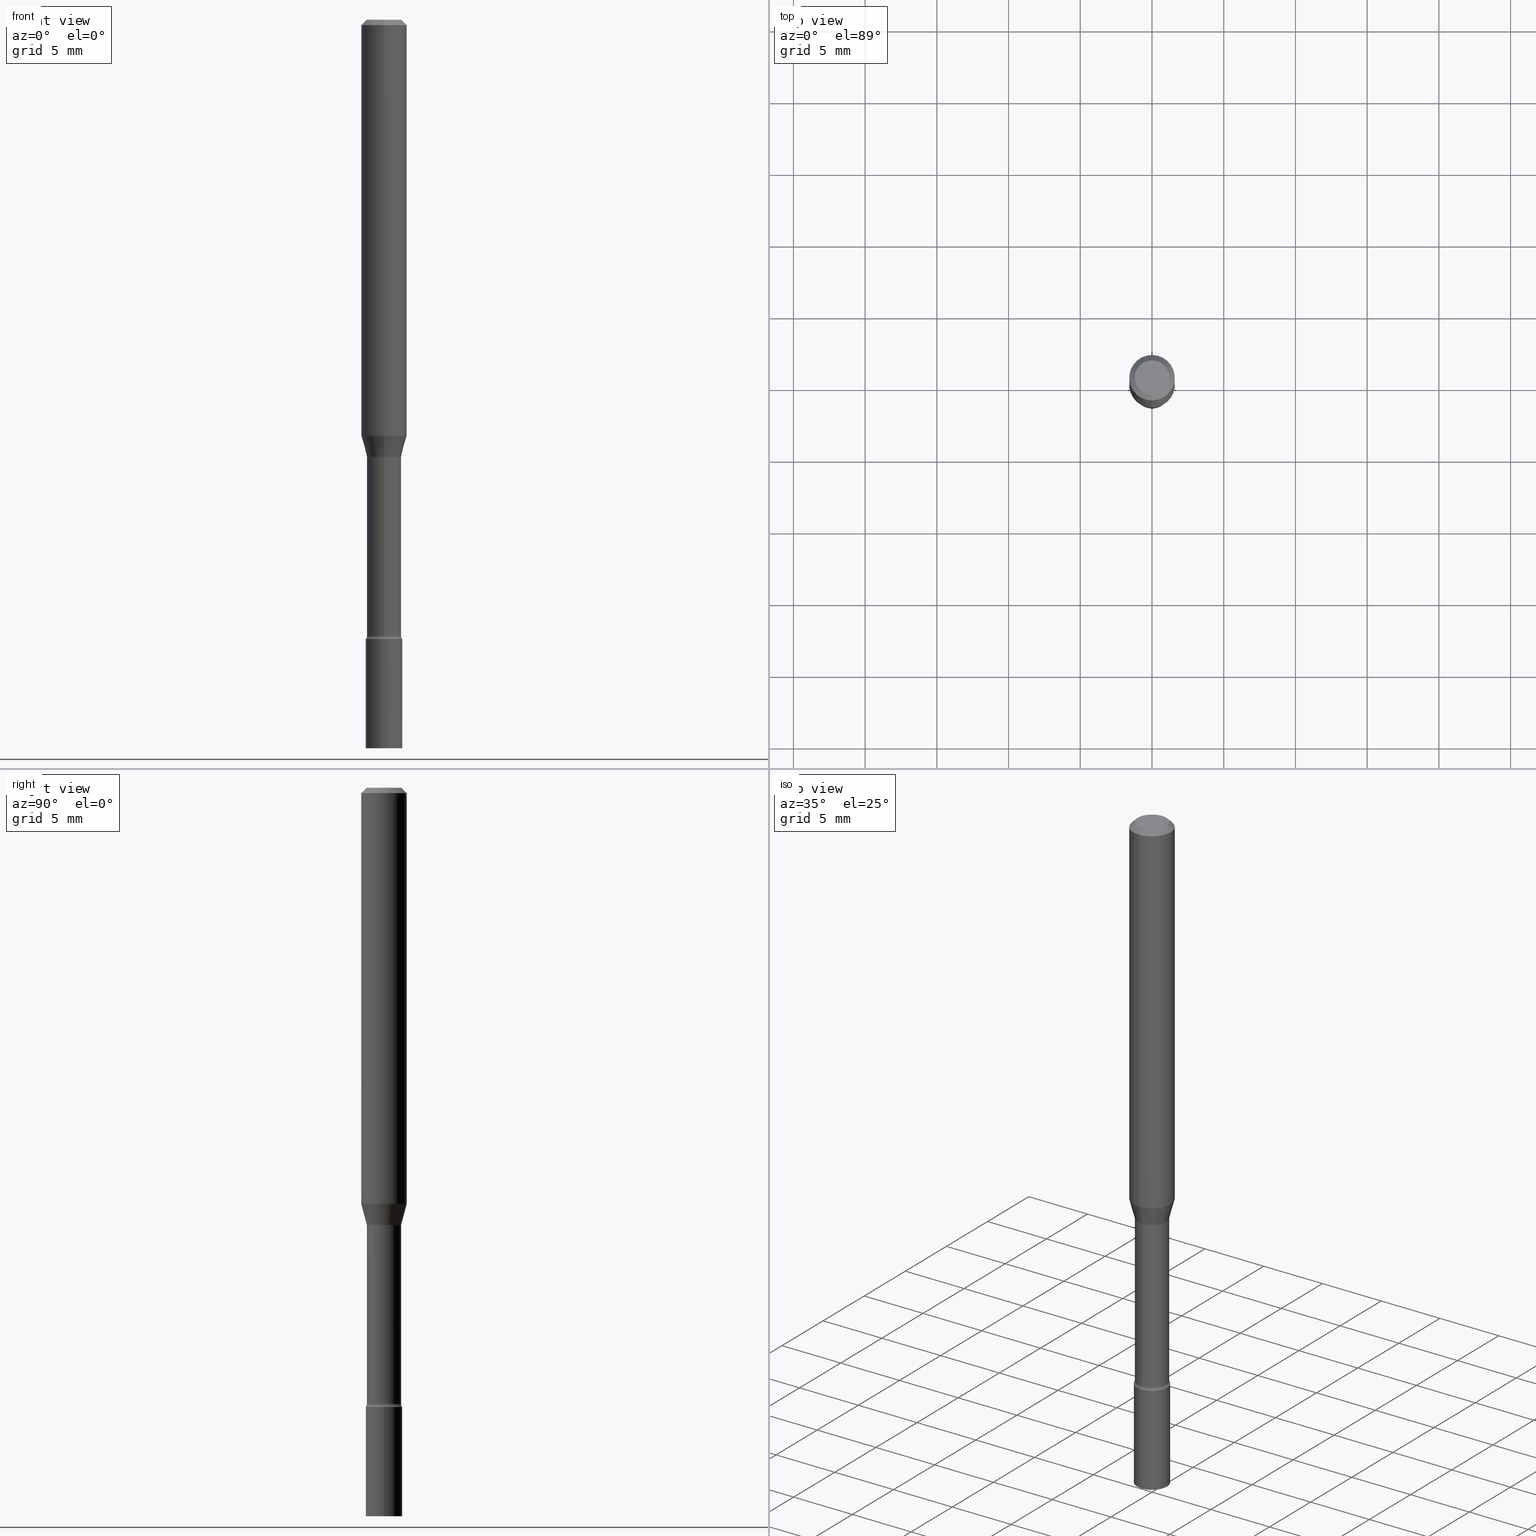
[diagram: canonical four-view strip — front | top / right | iso, engineering-drawing reading convention]
A machine part, canonical four-view strip (front | top / right | iso — engineering-drawing reading convention). The complete STEP part file that produces these views, byte-faithful:
ISO-10303-21;
HEADER;
FILE_DESCRIPTION (( 'STEP AP203' ),
    '1' );
FILE_NAME ('04289.STEP',
    '2024-03-08T22:52:43',
    ( '' ),
    ( '' ),
    'SwSTEP 2.0',
    'SolidWorks 2023',
    '' );
FILE_SCHEMA (( 'CONFIG_CONTROL_DESIGN' ));
ENDSEC;

DATA;
#1 = ORIENTED_EDGE ( 'NONE', *, *, #505, .T. ) ;
#2 = VECTOR ( 'NONE', #340, 39.37007874015748143 ) ;
#3 = DIRECTION ( 'NONE',  ( 6.982962677686265922E-15, 1.000000000000000000, -3.483106191921935554E-15 ) ) ;
#4 = EDGE_CURVE ( 'NONE', #512, #92, #429, .T. ) ;
#5 = FACE_OUTER_BOUND ( 'NONE', #148, .T. ) ;
#6 = CARTESIAN_POINT ( 'NONE',  ( -3.491481338842715752E-16, -0.05000000000000592165, -1.699999999999999734 ) ) ;
#7 = CARTESIAN_POINT ( 'NONE',  ( 0.000000000000000000, 0.000000000000000000, 0.000000000000000000 ) ) ;
#8 = ORIENTED_EDGE ( 'NONE', *, *, #56, .F. ) ;
#9 = EDGE_CURVE ( 'NONE', #92, #169, #440, .T. ) ;
#10 = ORIENTED_EDGE ( 'NONE', *, *, #437, .T. ) ;
#11 = CIRCLE ( 'NONE', #262, 0.05000000000000000278 ) ;
#12 = ORIENTED_EDGE ( 'NONE', *, *, #402, .F. ) ;
#13 = CARTESIAN_POINT ( 'NONE',  ( 2.929807212945176196E-29, -4.183247395363407670E-15, -1.198092501787273001 ) ) ;
#14 = VERTEX_POINT ( 'NONE', #202 ) ;
#15 = CALENDAR_DATE ( 2024, 8, 3 ) ;
#16 = CARTESIAN_POINT ( 'NONE',  ( 3.840629472727447874E-16, 0.04749999999999999362, -1.947592745229184119E-16 ) ) ;
#17 = CIRCLE ( 'NONE', #470, 0.01499999999999997689 ) ;
#18 = PRODUCT_DEFINITION_SHAPE ( 'NONE', 'NONE',  #465 ) ;
#19 = CONICAL_SURFACE ( 'NONE', #175, 0.06250000000000000000, 0.7853981633974483900 ) ;
#20 = ADVANCED_FACE ( 'NONE', ( #375 ), #270, .F. ) ;
#21 = COORDINATED_UNIVERSAL_TIME_OFFSET ( 5, 0, .BEHIND. ) ;
#22 = DIRECTION ( 'NONE',  ( -2.445393163361418932E-29, 3.491589663672031221E-15, 1.000000000000000000 ) ) ;
#23 =( NAMED_UNIT ( * ) SI_UNIT ( $, .STERADIAN. ) SOLID_ANGLE_UNIT ( ) );
#24 = DATE_AND_TIME ( #360, #516 ) ;
#25 = APPROVAL_DATE_TIME ( #79, #280 ) ;
#26 = DIRECTION ( 'NONE',  ( -1.000000000000000000, 6.982962677686265922E-15, -4.883557194083112340E-29 ) ) ;
#27 = CIRCLE ( 'NONE', #496, 0.05000000000000000278 ) ;
#28 = CARTESIAN_POINT ( 'NONE',  ( -3.317683261006717080E-16, -0.04751111260566815570, -1.198092501787272779 ) ) ;
#29 = CC_DESIGN_PERSON_AND_ORGANIZATION_ASSIGNMENT ( #255, #485, ( #67 ) ) ;
#30 = ORIENTED_EDGE ( 'NONE', *, *, #264, .T. ) ;
#31 = DIRECTION ( 'NONE',  ( 2.445393163361418932E-29, -3.491589663672031221E-15, -1.000000000000000000 ) ) ;
#32 = DIRECTION ( 'NONE',  ( -6.982962677686265922E-15, -1.000000000000000000, 3.491589663672031221E-15 ) ) ;
#33 = CIRCLE ( 'NONE', #102, 0.01499999999999999424 ) ;
#34 = CARTESIAN_POINT ( 'NONE',  ( -0.05000000000000000278, -6.103969108979769176E-15, -2.000000000000000000 ) ) ;
#35 = EDGE_CURVE ( 'NONE', #192, #125, #33, .T. ) ;
#36 = AXIS2_PLACEMENT_3D ( 'NONE', #431, #226, #88 ) ;
#37 = CC_DESIGN_APPROVAL ( #482, ( #89 ) ) ;
#38 = ORIENTED_EDGE ( 'NONE', *, *, #323, .F. ) ;
#39 = EDGE_LOOP ( 'NONE', ( #129, #389 ) ) ;
#40 = APPROVAL ( #139, 'UNSPECIFIED' ) ;
#41 = ORIENTED_EDGE ( 'NONE', *, *, #35, .T. ) ;
#42 = AXIS2_PLACEMENT_3D ( 'NONE', #441, #46, #251 ) ;
#43 = DIRECTION ( 'NONE',  ( -6.982962677686265922E-15, -1.000000000000000000, 4.370956789862821150E-15 ) ) ;
#44 = ORIENTED_EDGE ( 'NONE', *, *, #225, .F. ) ;
#45 = DIRECTION ( 'NONE',  ( -6.982962677686265922E-15, -1.000000000000000000, 3.491589663672031221E-15 ) ) ;
#46 = DIRECTION ( 'NONE',  ( -2.445393163361418932E-29, 3.491589663672031221E-15, 1.000000000000000000 ) ) ;
#47 = PERSON ( 'UNSPECIFIED', 'UNSPECIFIED', 'UNSPECIFIED', ('UNSPECIFIED'), ('UNSPECIFIED'), ('UNSPECIFIED') ) ;
#48 = CARTESIAN_POINT ( 'NONE',  ( 3.908379845742332061E-16, 0.04751111260565978739, -1.198092501787273223 ) ) ;
#49 = AXIS2_PLACEMENT_3D ( 'NONE', #238, #405, #372 ) ;
#50 = ORIENTED_EDGE ( 'NONE', *, *, #227, .F. ) ;
#51 = CARTESIAN_POINT ( 'NONE',  ( 4.157296970514731878E-29, -5.935518276033347214E-15, -1.699999999999999956 ) ) ;
#52 = AXIS2_PLACEMENT_3D ( 'NONE', #428, #358, #294 ) ;
#53 = EDGE_CURVE ( 'NONE', #64, #169, #172, .T. ) ;
#54 = ORIENTED_EDGE ( 'NONE', *, *, #227, .T. ) ;
#55 = CC_DESIGN_PERSON_AND_ORGANIZATION_ASSIGNMENT ( #468, #100, ( #465 ) ) ;
#56 = EDGE_CURVE ( 'NONE', #169, #64, #469, .T. ) ;
#57 =( CONVERSION_BASED_UNIT ( 'INCH', #425 ) LENGTH_UNIT ( ) NAMED_UNIT ( #163 ) );
#58 = PERSON_AND_ORGANIZATION_ROLE ( 'creator' ) ;
#59 = VECTOR ( 'NONE', #368, 39.37007874015748854 ) ;
#60 = CC_DESIGN_SECURITY_CLASSIFICATION ( #154, ( #89 ) ) ;
#61 = DIRECTION ( 'NONE',  ( -2.445393163361418932E-29, 3.491589663672031221E-15, 1.000000000000000000 ) ) ;
#62 = ORIENTED_EDGE ( 'NONE', *, *, #349, .T. ) ;
#63 = LINE ( 'NONE', #397, #97 ) ;
#64 = VERTEX_POINT ( 'NONE', #260 ) ;
#65 = DIRECTION ( 'NONE',  ( 2.445393163361418372E-29, -3.491589663672031616E-15, -1.000000000000000000 ) ) ;
#66 = AXIS2_PLACEMENT_3D ( 'NONE', #111, #83, #32 ) ;
#67 = PRODUCT ( '04289', '04289', '', ( #108 ) ) ;
#68 = CYLINDRICAL_SURFACE ( 'NONE', #42, 0.06250000000000000000 ) ;
#69 = CARTESIAN_POINT ( 'NONE',  ( 4.890937612370273194E-29, -6.982962677686291165E-15, -2.000000000000000000 ) ) ;
#70 = CARTESIAN_POINT ( 'NONE',  ( 2.939300927796797493E-29, -4.196802743903029132E-15, -1.201974787463810701 ) ) ;
#71 = ORIENTED_EDGE ( 'NONE', *, *, #120, .F. ) ;
#72 = CIRCLE ( 'NONE', #359, 0.04751111260566397154 ) ;
#73 = CARTESIAN_POINT ( 'NONE',  ( 0.05000000000000000278, -6.284666409917660550E-15, -1.699999999999999956 ) ) ;
#74 = AXIS2_PLACEMENT_3D ( 'NONE', #474, #61, #106 ) ;
#75 = LINE ( 'NONE', #374, #379 ) ;
#76 = EDGE_LOOP ( 'NONE', ( #84, #12, #448, #453 ) ) ;
#77 = ORIENTED_EDGE ( 'NONE', *, *, #35, .F. ) ;
#78 = VERTEX_POINT ( 'NONE', #48 ) ;
#79 = DATE_AND_TIME ( #249, #345 ) ;
#80 = ORIENTED_EDGE ( 'NONE', *, *, #9, .F. ) ;
#81 = ORIENTED_EDGE ( 'NONE', *, *, #307, .F. ) ;
#82 = DIRECTION ( 'NONE',  ( -6.982962677686265922E-15, -1.000000000000000000, 3.491589663672031221E-15 ) ) ;
#83 = DIRECTION ( 'NONE',  ( -2.445393163361418932E-29, 3.491589663672031221E-15, 1.000000000000000000 ) ) ;
#84 = ORIENTED_EDGE ( 'NONE', *, *, #264, .F. ) ;
#85 = DATE_TIME_ROLE ( 'creation_date' ) ;
#86 = APPROVAL_ROLE ( '' ) ;
#87 = VERTEX_POINT ( 'NONE', #386 ) ;
#88 = DIRECTION ( 'NONE',  ( -6.982962677686265922E-15, -1.000000000000000000, 2.874956872025124521E-15 ) ) ;
#89 = PRODUCT_DEFINITION_FORMATION_WITH_SPECIFIED_SOURCE ( 'ANY', '', #67, .NOT_KNOWN. ) ;
#90 = ORIENTED_EDGE ( 'NONE', *, *, #180, .F. ) ;
#91 = CARTESIAN_POINT ( 'NONE',  ( 0.000000000000000000, 0.000000000000000000, 0.000000000000000000 ) ) ;
#92 = VERTEX_POINT ( 'NONE', #313 ) ;
#93 = CARTESIAN_POINT ( 'NONE',  ( 3.339550858072885526E-16, 0.04699999999999578820, -1.201974787463810923 ) ) ;
#94 = ORIENTED_EDGE ( 'NONE', *, *, #149, .T. ) ;
#95 = MANIFOLD_SOLID_BREP ( 'Body-Move/Copy2[1]', #126 ) ;
#96 = FACE_OUTER_BOUND ( 'NONE', #201, .T. ) ;
#97 = VECTOR ( 'NONE', #475, 39.37007874015748143 ) ;
#98 = MANIFOLD_SOLID_BREP ( 'Body-Move/Copy2[2]', #370 ) ;
#99 = PERSON_AND_ORGANIZATION ( #47, #224 ) ;
#100 = PERSON_AND_ORGANIZATION_ROLE ( 'creator' ) ;
#101 = CARTESIAN_POINT ( 'NONE',  ( -3.317683261006717080E-16, -0.04751111260566815570, -1.198092501787272779 ) ) ;
#102 = AXIS2_PLACEMENT_3D ( 'NONE', #328, #483, #110 ) ;
#103 = LOCAL_TIME ( 17, 52, 43.00000000000000000, #287 ) ;
#104 = ORIENTED_EDGE ( 'NONE', *, *, #9, .T. ) ;
#105 = CARTESIAN_POINT ( 'NONE',  ( 2.793013657316433629E-29, -3.987930351034339464E-15, -1.142153212482682312 ) ) ;
#106 = DIRECTION ( 'NONE',  ( -6.982962677686266711E-15, -1.000000000000000000, 3.491589663672031221E-15 ) ) ;
#107 = ORIENTED_EDGE ( 'NONE', *, *, #292, .F. ) ;
#108 = MECHANICAL_CONTEXT ( 'NONE', #161, 'mechanical' ) ;
#109 = TOROIDAL_SURFACE ( 'NONE', #463, 0.06199999999999999956, 0.01499999999999999424 ) ;
#110 = DIRECTION ( 'NONE',  ( -6.982962677686266711E-15, -1.000000000000000000, 0.000000000000000000 ) ) ;
#111 = CARTESIAN_POINT ( 'NONE',  ( 0.000000000000000000, 0.000000000000000000, 0.000000000000000000 ) ) ;
#112 = DIRECTION ( 'NONE',  ( -2.445468806185136597E-29, 3.491481338843145583E-15, 1.000000000000000000 ) ) ;
#113 = EDGE_LOOP ( 'NONE', ( #50, #71, #41, #302 ) ) ;
#114 = VERTEX_POINT ( 'NONE', #16 ) ;
#115 = CIRCLE ( 'NONE', #420, 0.05000000000000000278 ) ;
#116 = AXIS2_PLACEMENT_3D ( 'NONE', #156, #269, #427 ) ;
#117 = VECTOR ( 'NONE', #511, 39.37007874015748143 ) ;
#118 = COORDINATED_UNIVERSAL_TIME_OFFSET ( 5, 0, .BEHIND. ) ;
#119 = ORIENTED_EDGE ( 'NONE', *, *, #257, .F. ) ;
#120 = EDGE_CURVE ( 'NONE', #192, #78, #72, .T. ) ;
#121 = CARTESIAN_POINT ( 'NONE',  ( -4.329436860165075429E-16, -0.06200000000000597394, -1.690999999999999837 ) ) ;
#122 = EDGE_LOOP ( 'NONE', ( #44, #514, #490, #408 ) ) ;
#123 = DIRECTION ( 'NONE',  ( -2.445393163361418932E-29, 3.491589663672031221E-15, 1.000000000000000000 ) ) ;
#124 = LOCAL_TIME ( 17, 52, 43.00000000000000000, #491 ) ;
#125 = VERTEX_POINT ( 'NONE', #309 ) ;
#126 = CLOSED_SHELL ( 'NONE', ( #295, #130, #165, #338 ) ) ;
#127 = PERSON_AND_ORGANIZATION ( #47, #224 ) ;
#128 = AXIS2_PLACEMENT_3D ( 'NONE', #373, #480, #484 ) ;
#129 = ORIENTED_EDGE ( 'NONE', *, *, #132, .T. ) ;
#130 = ADVANCED_FACE ( 'NONE', ( #219 ), #419, .T. ) ;
#131 = SECURITY_CLASSIFICATION_LEVEL ( 'unclassified' ) ;
#132 = EDGE_CURVE ( 'NONE', #455, #394, #115, .T. ) ;
#133 = DIRECTION ( 'NONE',  ( -2.445468806185136877E-29, 3.491481338843145188E-15, 1.000000000000000000 ) ) ;
#134 = DIRECTION ( 'NONE',  ( -2.445393163361418932E-29, 3.491589663672031221E-15, 1.000000000000000000 ) ) ;
#135 = APPROVAL_DATE_TIME ( #306, #482 ) ;
#136 = CARTESIAN_POINT ( 'NONE',  ( -4.364351673553912750E-16, -0.06250000000000005551, -0.01499999999999981209 ) ) ;
#137 = EDGE_LOOP ( 'NONE', ( #377, #62, #276, #81 ) ) ;
#138 = CARTESIAN_POINT ( 'NONE',  ( 0.05000000000000000278, -3.491481338843133848E-16, 2.438088387897968247E-30 ) ) ;
#139 = APPROVAL_STATUS ( 'not_yet_approved' ) ;
#140 = PERSON_AND_ORGANIZATION ( #47, #224 ) ;
#141 = DIRECTION ( 'NONE',  ( 1.000000000000000000, -7.105427357601001070E-15, 4.926316835138632092E-29 ) ) ;
#142 = DIRECTION ( 'NONE',  ( -2.445468806185136597E-29, 3.491481338843145583E-15, 1.000000000000000000 ) ) ;
#143 = DIRECTION ( 'NONE',  ( -2.445393163361418932E-29, 3.491589663672031221E-15, 1.000000000000000000 ) ) ;
#144 = AXIS2_PLACEMENT_3D ( 'NONE', #288, #337, #209 ) ;
#145 = EDGE_CURVE ( 'NONE', #394, #455, #11, .T. ) ;
#146 = CONICAL_SURFACE ( 'NONE', #116, 0.04751111260566397154, 0.2617993877991500740 ) ;
#147 = AXIS2_PLACEMENT_3D ( 'NONE', #322, #364, #508 ) ;
#148 = EDGE_LOOP ( 'NONE', ( #320, #366, #261, #494 ) ) ;
#149 = EDGE_CURVE ( 'NONE', #459, #14, #515, .T. ) ;
#150 = CC_DESIGN_DATE_AND_TIME_ASSIGNMENT ( #207, #319, ( #154 ) ) ;
#151 = FACE_OUTER_BOUND ( 'NONE', #312, .T. ) ;
#152 = AXIS2_PLACEMENT_3D ( 'NONE', #460, #498, #212 ) ;
#153 = CARTESIAN_POINT ( 'NONE',  ( 4.405364961712914478E-16, 0.06199999999999579459, -1.201974787463811145 ) ) ;
#154 = SECURITY_CLASSIFICATION ( '', '', #131 ) ;
#155 = DIRECTION ( 'NONE',  ( 6.982962677686265922E-15, 1.000000000000000000, -3.491589663672031616E-15 ) ) ;
#156 = CARTESIAN_POINT ( 'NONE',  ( 2.929807212945176196E-29, -4.183247395363407670E-15, -1.198092501787273001 ) ) ;
#157 = CARTESIAN_POINT ( 'NONE',  ( 3.375867592983758407E-16, 0.04751111260565978739, -1.198092501787273223 ) ) ;
#158 = ORIENTED_EDGE ( 'NONE', *, *, #225, .T. ) ;
#159 = DIRECTION ( 'NONE',  ( -2.445393163361418932E-29, 3.491589663672031616E-15, 1.000000000000000000 ) ) ;
#160 = CIRCLE ( 'NONE', #387, 0.04700000000000009032 ) ;
#161 = APPLICATION_CONTEXT ( 'configuration controlled 3d designs of mechanical parts and assemblies' ) ;
#162 = CARTESIAN_POINT ( 'NONE',  ( 2.793013657316433629E-29, -3.987930351034339464E-15, -1.142153212482682312 ) ) ;
#163 = DIMENSIONAL_EXPONENTS ( 1.000000000000000000, 0.000000000000000000, 0.000000000000000000, 0.000000000000000000, 0.000000000000000000, 0.000000000000000000, 0.000000000000000000 ) ;
#164 = DIRECTION ( 'NONE',  ( 1.000000000000000000, -7.105427357601001070E-15, 4.926316835138632092E-29 ) ) ;
#165 = ADVANCED_FACE ( 'NONE', ( #241 ), #390, .T. ) ;
#166 = DIRECTION ( 'NONE',  ( -2.445393163361418932E-29, 3.491589663672031221E-15, 1.000000000000000000 ) ) ;
#167 = DIRECTION ( 'NONE',  ( 2.438088387897960049E-29, -3.491481338843145188E-15, -1.000000000000000000 ) ) ;
#168 = ORIENTED_EDGE ( 'NONE', *, *, #182, .F. ) ;
#169 = VERTEX_POINT ( 'NONE', #136 ) ;
#170 = DIRECTION ( 'NONE',  ( -2.445393163361418372E-29, 3.491589663672031616E-15, 1.000000000000000000 ) ) ;
#171 = EDGE_LOOP ( 'NONE', ( #216, #363, #1, #168 ) ) ;
#172 = CIRCLE ( 'NONE', #49, 0.06250000000000000000 ) ;
#173 = AXIS2_PLACEMENT_3D ( 'NONE', #452, #263, #248 ) ;
#174 = EDGE_CURVE ( 'NONE', #476, #381, #354, .T. ) ;
#175 = AXIS2_PLACEMENT_3D ( 'NONE', #385, #285, #442 ) ;
#176 = ORIENTED_EDGE ( 'NONE', *, *, #210, .T. ) ;
#177 = DIRECTION ( 'NONE',  ( -2.445393163361418932E-29, 3.491589663672031221E-15, 1.000000000000000000 ) ) ;
#178 = CARTESIAN_POINT ( 'NONE',  ( -4.287811248607203282E-16, -0.06250000000000005551, -0.01499999999999981209 ) ) ;
#179 = ORIENTED_EDGE ( 'NONE', *, *, #510, .F. ) ;
#180 = EDGE_CURVE ( 'NONE', #203, #87, #160, .T. ) ;
#181 = DIRECTION ( 'NONE',  ( 7.105427357601006592E-15, 1.000000000000000000, 0.000000000000000000 ) ) ;
#182 = EDGE_CURVE ( 'NONE', #346, #125, #443, .T. ) ;
#183 = COORDINATED_UNIVERSAL_TIME_OFFSET ( 5, 0, .BEHIND. ) ;
#184 = CIRCLE ( 'NONE', #195, 0.01499999999999997689 ) ;
#185 = APPLICATION_CONTEXT ( 'configuration controlled 3d designs of mechanical parts and assemblies' ) ;
#186 = FACE_OUTER_BOUND ( 'NONE', #331, .T. ) ;
#187 = SHAPE_DEFINITION_REPRESENTATION ( #18, #504 ) ;
#188 = CIRCLE ( 'NONE', #489, 0.06250000000000000000 ) ;
#189 = APPROVAL_PERSON_ORGANIZATION ( #237, #482, #330 ) ;
#190 = DIRECTION ( 'NONE',  ( -2.445393163361418932E-29, 3.491589663672031221E-15, 1.000000000000000000 ) ) ;
#191 = EDGE_CURVE ( 'NONE', #343, #114, #456, .T. ) ;
#192 = VERTEX_POINT ( 'NONE', #28 ) ;
#193 = AXIS2_PLACEMENT_3D ( 'NONE', #162, #123, #43 ) ;
#194 = ORIENTED_EDGE ( 'NONE', *, *, #191, .F. ) ;
#195 = AXIS2_PLACEMENT_3D ( 'NONE', #503, #141, #181 ) ;
#196 = DIRECTION ( 'NONE',  ( -6.982962677686265922E-15, -1.000000000000000000, 3.491589663672031221E-15 ) ) ;
#197 =( GEOMETRIC_REPRESENTATION_CONTEXT ( 3 ) GLOBAL_UNCERTAINTY_ASSIGNED_CONTEXT ( ( #266 ) ) GLOBAL_UNIT_ASSIGNED_CONTEXT ( ( #57, #315, #23 ) ) REPRESENTATION_CONTEXT ( 'NONE', 'WORKASPACE' ) );
#198 = CC_DESIGN_PERSON_AND_ORGANIZATION_ASSIGNMENT ( #140, #58, ( #89 ) ) ;
#199 = FACE_OUTER_BOUND ( 'NONE', #113, .T. ) ;
#200 = APPLICATION_PROTOCOL_DEFINITION ( 'international standard', 'config_control_design', 1994, #185 ) ;
#201 = EDGE_LOOP ( 'NONE', ( #119, #218 ) ) ;
#202 = CARTESIAN_POINT ( 'NONE',  ( 0.05000000000000000278, -7.332110811570605290E-15, -2.000000000000000000 ) ) ;
#203 = VERTEX_POINT ( 'NONE', #434 ) ;
#204 = LINE ( 'NONE', #446, #296 ) ;
#205 = EDGE_CURVE ( 'NONE', #114, #64, #229, .T. ) ;
#206 = AXIS2_PLACEMENT_3D ( 'NONE', #91, #22, #221 ) ;
#207 = DATE_AND_TIME ( #339, #103 ) ;
#208 = PRODUCT_RELATED_PRODUCT_CATEGORY ( 'detail', '', ( #67 ) ) ;
#209 = DIRECTION ( 'NONE',  ( -6.982962677686265922E-15, -1.000000000000000000, 3.491589663672031221E-15 ) ) ;
#210 = EDGE_CURVE ( 'NONE', #114, #343, #215, .T. ) ;
#211 = DIRECTION ( 'NONE',  ( 1.000000000000000000, -6.982962677686274599E-15, 0.000000000000000000 ) ) ;
#212 = DIRECTION ( 'NONE',  ( 1.000000000000000000, -6.982962677686267499E-15, 4.876176775795936353E-29 ) ) ;
#213 = ADVANCED_FACE ( 'NONE', ( #517 ), #509, .T. ) ;
#214 = DIRECTION ( 'NONE',  ( -2.445393163361418932E-29, 3.491589663672031221E-15, 1.000000000000000000 ) ) ;
#215 = CIRCLE ( 'NONE', #223, 0.04749999999999999362 ) ;
#216 = ORIENTED_EDGE ( 'NONE', *, *, #437, .F. ) ;
#217 = ORIENTED_EDGE ( 'NONE', *, *, #349, .F. ) ;
#218 = ORIENTED_EDGE ( 'NONE', *, *, #149, .F. ) ;
#219 = FACE_OUTER_BOUND ( 'NONE', #39, .T. ) ;
#220 = ADVANCED_FACE ( 'NONE', ( #289 ), #333, .T. ) ;
#221 = DIRECTION ( 'NONE',  ( -6.982962677686267499E-15, -1.000000000000000000, 3.491589663672031616E-15 ) ) ;
#222 = FACE_OUTER_BOUND ( 'NONE', #462, .T. ) ;
#223 = AXIS2_PLACEMENT_3D ( 'NONE', #380, #401, #371 ) ;
#224 = ORGANIZATION ( 'UNSPECIFIED', 'UNSPECIFIED', '' ) ;
#225 = EDGE_CURVE ( 'NONE', #78, #512, #246, .T. ) ;
#226 = DIRECTION ( 'NONE',  ( -2.445393163361418932E-29, 3.491589663672031221E-15, 1.000000000000000000 ) ) ;
#227 = EDGE_CURVE ( 'NONE', #78, #346, #421, .T. ) ;
#228 = APPLICATION_PROTOCOL_DEFINITION ( 'international standard', 'config_control_design', 1994, #161 ) ;
#229 = LINE ( 'NONE', #362, #117 ) ;
#230 = ORIENTED_EDGE ( 'NONE', *, *, #505, .F. ) ;
#231 = ADVANCED_FACE ( 'NONE', ( #282 ), #325, .T. ) ;
#232 = VECTOR ( 'NONE', #273, 39.37007874015748854 ) ;
#233 = ORIENTED_EDGE ( 'NONE', *, *, #393, .F. ) ;
#234 = ADVANCED_FACE ( 'NONE', ( #283 ), #109, .F. ) ;
#235 = CARTESIAN_POINT ( 'NONE',  ( 4.440892098500904235E-16, 0.06249999999999601014, -1.142153212482682756 ) ) ;
#236 = DIRECTION ( 'NONE',  ( -2.445393163361418932E-29, 3.491589663672031221E-15, 1.000000000000000000 ) ) ;
#237 = PERSON_AND_ORGANIZATION ( #47, #224 ) ;
#238 = CARTESIAN_POINT ( 'NONE',  ( 3.668089745042136001E-31, -5.237384495508057654E-17, -0.01500000000000003067 ) ) ;
#239 = CIRCLE ( 'NONE', #388, 0.04699999999999998623 ) ;
#240 = CARTESIAN_POINT ( 'NONE',  ( 3.552713678800914786E-16, 0.04999999999999404227, -1.700000000000000178 ) ) ;
#241 = FACE_OUTER_BOUND ( 'NONE', #245, .T. ) ;
#242 = EDGE_LOOP ( 'NONE', ( #38, #54, #423, #77 ) ) ;
#243 = CALENDAR_DATE ( 2024, 8, 3 ) ;
#244 = ADVANCED_FACE ( 'NONE', ( #329 ), #68, .T. ) ;
#245 = EDGE_LOOP ( 'NONE', ( #217, #94, #433, #279 ) ) ;
#246 = LINE ( 'NONE', #157, #59 ) ;
#247 = EDGE_LOOP ( 'NONE', ( #194, #332, #477, #348 ) ) ;
#248 = DIRECTION ( 'NONE',  ( -6.982962677686265922E-15, -1.000000000000000000, 2.874956872025124521E-15 ) ) ;
#249 = CALENDAR_DATE ( 2024, 8, 3 ) ;
#250 = ADVANCED_FACE ( 'NONE', ( #458 ), #493, .T. ) ;
#251 = DIRECTION ( 'NONE',  ( -6.982962677686265922E-15, -1.000000000000000000, 3.491589663672031221E-15 ) ) ;
#252 = VECTOR ( 'NONE', #133, 39.37007874015748143 ) ;
#253 = CARTESIAN_POINT ( 'NONE',  ( 2.939391848563758953E-29, -4.196672540189851950E-15, -1.201974787463810701 ) ) ;
#254 = AXIS2_PLACEMENT_3D ( 'NONE', #253, #214, #45 ) ;
#255 = PERSON_AND_ORGANIZATION ( #47, #224 ) ;
#256 = ORIENTED_EDGE ( 'NONE', *, *, #432, .T. ) ;
#257 = EDGE_CURVE ( 'NONE', #14, #459, #27, .T. ) ;
#258 = PLANE ( 'NONE',  #344 ) ;
#259 = PERSON_AND_ORGANIZATION_ROLE ( 'classification_officer' ) ;
#260 = CARTESIAN_POINT ( 'NONE',  ( 4.440892098500906207E-16, 0.06249999999999993755, -0.01500000000000024751 ) ) ;
#261 = ORIENTED_EDGE ( 'NONE', *, *, #205, .T. ) ;
#262 = AXIS2_PLACEMENT_3D ( 'NONE', #383, #369, #481 ) ;
#263 = DIRECTION ( 'NONE',  ( -2.445393163361418932E-29, 3.491589663672031221E-15, 1.000000000000000000 ) ) ;
#264 = EDGE_CURVE ( 'NONE', #203, #476, #184, .T. ) ;
#265 = CARTESIAN_POINT ( 'NONE',  ( 4.157296970514731878E-29, -5.935518276033347214E-15, -1.699999999999999956 ) ) ;
#266 = UNCERTAINTY_MEASURE_WITH_UNIT (LENGTH_MEASURE( 1.000000000000000082E-05 ), #57, 'distance_accuracy_value', 'NONE');
#267 = APPROVAL_ROLE ( '' ) ;
#268 = PERSON_AND_ORGANIZATION_ROLE ( 'design_supplier' ) ;
#269 = DIRECTION ( 'NONE',  ( -2.445393163361418932E-29, 3.491589663672031221E-15, 1.000000000000000000 ) ) ;
#270 = TOROIDAL_SURFACE ( 'NONE', #144, 0.06200000000000006894, 0.01499999999999998036 ) ;
#271 = CIRCLE ( 'NONE', #52, 0.05000000000000000278 ) ;
#272 = CC_DESIGN_APPROVAL ( #280, ( #465 ) ) ;
#273 = DIRECTION ( 'NONE',  ( -1.807323732225328562E-15, -0.2588190451025179639, 0.9659258262890690894 ) ) ;
#274 = ORIENTED_EDGE ( 'NONE', *, *, #473, .F. ) ;
#275 = CC_DESIGN_PERSON_AND_ORGANIZATION_ASSIGNMENT ( #99, #268, ( #89 ) ) ;
#276 = ORIENTED_EDGE ( 'NONE', *, *, #132, .F. ) ;
#277 = FACE_OUTER_BOUND ( 'NONE', #409, .T. ) ;
#278 = DIRECTION ( 'NONE',  ( -6.982962677686266711E-15, -1.000000000000000000, 0.000000000000000000 ) ) ;
#279 = ORIENTED_EDGE ( 'NONE', *, *, #145, .F. ) ;
#280 = APPROVAL ( #520, 'UNSPECIFIED' ) ;
#281 = AXIS2_PLACEMENT_3D ( 'NONE', #70, #376, #398 ) ;
#282 = FACE_OUTER_BOUND ( 'NONE', #350, .T. ) ;
#283 = FACE_OUTER_BOUND ( 'NONE', #242, .T. ) ;
#284 = DIRECTION ( 'NONE',  ( 1.000000000000000000, -6.982962677686274599E-15, 0.000000000000000000 ) ) ;
#285 = DIRECTION ( 'NONE',  ( 2.445393163361418932E-29, -3.491589663672031221E-15, -1.000000000000000000 ) ) ;
#286 = ADVANCED_FACE ( 'NONE', ( #186 ), #396, .F. ) ;
#287 = COORDINATED_UNIVERSAL_TIME_OFFSET ( 5, 0, .BEHIND. ) ;
#288 = CARTESIAN_POINT ( 'NONE',  ( 4.135287751259066496E-29, -5.904094943983759361E-15, -1.691000000000000059 ) ) ;
#289 = FACE_OUTER_BOUND ( 'NONE', #391, .T. ) ;
#290 = DIRECTION ( 'NONE',  ( -6.982962677686265922E-15, -1.000000000000000000, 2.906221269855600083E-15 ) ) ;
#291 = LINE ( 'NONE', #299, #252 ) ;
#292 = EDGE_CURVE ( 'NONE', #381, #476, #271, .T. ) ;
#293 = ORIENTED_EDGE ( 'NONE', *, *, #310, .F. ) ;
#294 = DIRECTION ( 'NONE',  ( -6.982962677686265133E-15, -1.000000000000000000, 5.463695987328526437E-15 ) ) ;
#295 = ADVANCED_FACE ( 'NONE', ( #454 ), #506, .T. ) ;
#296 = VECTOR ( 'NONE', #367, 39.37007874015748143 ) ;
#297 = AXIS2_PLACEMENT_3D ( 'NONE', #410, #166, #415 ) ;
#298 = APPROVAL_PERSON_ORGANIZATION ( #361, #40, #267 ) ;
#299 = CARTESIAN_POINT ( 'NONE',  ( -0.05000000000000000278, 3.552713678800501127E-16, -2.459467545127453311E-30 ) ) ;
#300 = ORIENTED_EDGE ( 'NONE', *, *, #120, .T. ) ;
#301 = DIRECTION ( 'NONE',  ( -6.982962677686265922E-15, -1.000000000000000000, 3.483106191921935554E-15 ) ) ;
#302 = ORIENTED_EDGE ( 'NONE', *, *, #473, .T. ) ;
#303 = DIRECTION ( 'NONE',  ( -6.982962677686265922E-15, -1.000000000000000000, 2.874956872025124521E-15 ) ) ;
#304 = DIRECTION ( 'NONE',  ( -6.982962677686265133E-15, -1.000000000000000000, 5.812442539711187545E-15 ) ) ;
#305 =( LENGTH_UNIT ( ) NAMED_UNIT ( * ) SI_UNIT ( $, .METRE. ) );
#306 = DATE_AND_TIME ( #15, #502 ) ;
#307 = EDGE_CURVE ( 'NONE', #14, #455, #316, .T. ) ;
#308 = FACE_OUTER_BOUND ( 'NONE', #122, .T. ) ;
#309 = CARTESIAN_POINT ( 'NONE',  ( -3.281992458512250202E-16, -0.04700000000000418426, -1.201974787463810701 ) ) ;
#310 = EDGE_CURVE ( 'NONE', #192, #92, #426, .T. ) ;
#311 = AXIS2_PLACEMENT_3D ( 'NONE', #450, #31, #3 ) ;
#312 = EDGE_LOOP ( 'NONE', ( #300, #158, #412, #293 ) ) ;
#313 = CARTESIAN_POINT ( 'NONE',  ( -4.364351673553637635E-16, -0.06250000000000399680, -1.142153212482682090 ) ) ;
#314 = DIRECTION ( 'NONE',  ( -2.445468806185136877E-29, 3.491481338843145188E-15, 1.000000000000000000 ) ) ;
#315 =( NAMED_UNIT ( * ) PLANE_ANGLE_UNIT ( ) SI_UNIT ( $, .RADIAN. ) );
#316 = LINE ( 'NONE', #138, #478 ) ;
#317 = AXIS2_PLACEMENT_3D ( 'NONE', #499, #134, #301 ) ;
#318 = AXIS2_PLACEMENT_3D ( 'NONE', #153, #164, #492 ) ;
#319 = DATE_TIME_ROLE ( 'classification_date' ) ;
#320 = ORIENTED_EDGE ( 'NONE', *, *, #353, .F. ) ;
#321 = DIRECTION ( 'NONE',  ( -2.445393163361418932E-29, 3.491589663672031221E-15, 1.000000000000000000 ) ) ;
#322 = CARTESIAN_POINT ( 'NONE',  ( 0.000000000000000000, 0.000000000000000000, 0.000000000000000000 ) ) ;
#323 = EDGE_CURVE ( 'NONE', #78, #192, #413, .T. ) ;
#324 = ORIENTED_EDGE ( 'NONE', *, *, #53, .F. ) ;
#325 = CYLINDRICAL_SURFACE ( 'NONE', #128, 0.04700000000000003481 ) ;
#326 = CARTESIAN_POINT ( 'NONE',  ( 2.939300927796797493E-29, -4.196802743903029132E-15, -1.201974787463810701 ) ) ;
#327 = APPROVAL_STATUS ( 'not_yet_approved' ) ;
#328 = CARTESIAN_POINT ( 'NONE',  ( -4.329436860165190307E-16, -0.06200000000000419759, -1.201974787463810479 ) ) ;
#329 = FACE_OUTER_BOUND ( 'NONE', #438, .T. ) ;
#330 = APPROVAL_ROLE ( '' ) ;
#331 = EDGE_LOOP ( 'NONE', ( #107, #407 ) ) ;
#332 = ORIENTED_EDGE ( 'NONE', *, *, #353, .T. ) ;
#333 = CYLINDRICAL_SURFACE ( 'NONE', #66, 0.06250000000000000000 ) ;
#334 = AXIS2_PLACEMENT_3D ( 'NONE', #265, #466, #424 ) ;
#335 = AXIS2_PLACEMENT_3D ( 'NONE', #356, #170, #382 ) ;
#336 = CARTESIAN_POINT ( 'NONE',  ( 4.135287751259066496E-29, -5.904094943983759361E-15, -1.691000000000000059 ) ) ;
#337 = DIRECTION ( 'NONE',  ( -2.445393163361418932E-29, 3.491589663672031221E-15, 1.000000000000000000 ) ) ;
#338 = ADVANCED_FACE ( 'NONE', ( #96 ), #258, .T. ) ;
#339 = CALENDAR_DATE ( 2024, 8, 3 ) ;
#340 = DIRECTION ( 'NONE',  ( -4.851104656540964275E-15, -0.7071067811865500152, -0.7071067811865450192 ) ) ;
#341 = ORIENTED_EDGE ( 'NONE', *, *, #174, .T. ) ;
#342 = CC_DESIGN_DATE_AND_TIME_ASSIGNMENT ( #24, #85, ( #465 ) ) ;
#343 = VERTEX_POINT ( 'NONE', #347 ) ;
#344 = AXIS2_PLACEMENT_3D ( 'NONE', #411, #167, #461 ) ;
#345 = LOCAL_TIME ( 17, 52, 43.00000000000000000, #118 ) ;
#346 = VERTEX_POINT ( 'NONE', #93 ) ;
#347 = CARTESIAN_POINT ( 'NONE',  ( -3.773273898774340269E-16, -0.04749999999999999362, 1.369417435259245226E-16 ) ) ;
#348 = ORIENTED_EDGE ( 'NONE', *, *, #205, .F. ) ;
#349 = EDGE_CURVE ( 'NONE', #459, #394, #291, .T. ) ;
#350 = EDGE_LOOP ( 'NONE', ( #486, #10, #274, #230 ) ) ;
#351 = DIRECTION ( 'NONE',  ( 1.000000000000000000, -6.982962677686267499E-15, 4.876176775795936353E-29 ) ) ;
#352 = CC_DESIGN_PERSON_AND_ORGANIZATION_ASSIGNMENT ( #127, #259, ( #154 ) ) ;
#353 = EDGE_CURVE ( 'NONE', #343, #169, #384, .T. ) ;
#354 = CIRCLE ( 'NONE', #297, 0.05000000000000000278 ) ;
#355 = DIRECTION ( 'NONE',  ( -6.982962677686265922E-15, -1.000000000000000000, 4.370956789862821150E-15 ) ) ;
#356 = CARTESIAN_POINT ( 'NONE',  ( 3.491481338843548493E-16, 0.04999999999999407002, -1.700000000000000178 ) ) ;
#357 = CARTESIAN_POINT ( 'NONE',  ( 4.135159839244159907E-29, -5.904278121269405101E-15, -1.691000000000000059 ) ) ;
#358 = DIRECTION ( 'NONE',  ( -2.445393163361418932E-29, 3.491589663672031221E-15, 1.000000000000000000 ) ) ;
#359 = AXIS2_PLACEMENT_3D ( 'NONE', #13, #177, #303 ) ;
#360 = CALENDAR_DATE ( 2024, 8, 3 ) ;
#361 = PERSON_AND_ORGANIZATION ( #47, #224 ) ;
#362 = CARTESIAN_POINT ( 'NONE',  ( 4.364351673553919652E-16, 0.06249999999999995143, -0.01500000000000024751 ) ) ;
#363 = ORIENTED_EDGE ( 'NONE', *, *, #180, .T. ) ;
#364 = DIRECTION ( 'NONE',  ( 0.000000000000000000, 0.000000000000000000, 1.000000000000000000 ) ) ;
#365 = ADVANCED_FACE ( 'NONE', ( #308 ), #404, .T. ) ;
#366 = ORIENTED_EDGE ( 'NONE', *, *, #210, .F. ) ;
#367 = DIRECTION ( 'NONE',  ( -2.445393163361418932E-29, 3.491589663672031616E-15, 1.000000000000000000 ) ) ;
#368 = DIRECTION ( 'NONE',  ( 1.839019923739598738E-15, 0.2588190451025247363, 0.9659258262890673130 ) ) ;
#369 = DIRECTION ( 'NONE',  ( -2.445468806185136597E-29, 3.491481338843145583E-15, 1.000000000000000000 ) ) ;
#370 = CLOSED_SHELL ( 'NONE', ( #234, #231, #518, #213, #244, #418, #365, #220, #488, #451, #286, #20, #250, #479 ) ) ;
#371 = DIRECTION ( 'NONE',  ( -6.982962677686266711E-15, -1.000000000000000000, 3.491589663672031221E-15 ) ) ;
#372 = DIRECTION ( 'NONE',  ( -6.982962677686265922E-15, -1.000000000000000000, 3.483106191921935554E-15 ) ) ;
#373 = CARTESIAN_POINT ( 'NONE',  ( 0.000000000000000000, 0.000000000000000000, 0.000000000000000000 ) ) ;
#374 = CARTESIAN_POINT ( 'NONE',  ( -3.281992458512547997E-16, -0.04700000000000003481, 1.641047141925856122E-16 ) ) ;
#375 = FACE_OUTER_BOUND ( 'NONE', #76, .T. ) ;
#376 = DIRECTION ( 'NONE',  ( -2.445393163361418932E-29, 3.491589663672031221E-15, 1.000000000000000000 ) ) ;
#377 = ORIENTED_EDGE ( 'NONE', *, *, #257, .T. ) ;
#378 = AXIS2_PLACEMENT_3D ( 'NONE', #406, #190, #447 ) ;
#379 = VECTOR ( 'NONE', #159, 39.37007874015748143 ) ;
#380 = CARTESIAN_POINT ( 'NONE',  ( 7.069329751124286245E-46, -1.009375468040705309E-31, -2.890876549849693234E-17 ) ) ;
#381 = VERTEX_POINT ( 'NONE', #6 ) ;
#382 = DIRECTION ( 'NONE',  ( -6.982962677686265922E-15, -1.000000000000000000, 3.491589663672031616E-15 ) ) ;
#383 = CARTESIAN_POINT ( 'NONE',  ( 4.157296970514731878E-29, -5.935518276033347214E-15, -1.699999999999999956 ) ) ;
#384 = LINE ( 'NONE', #178, #2 ) ;
#385 = CARTESIAN_POINT ( 'NONE',  ( 3.668089745042136001E-31, -5.237384495508057654E-17, -0.01500000000000003067 ) ) ;
#386 = CARTESIAN_POINT ( 'NONE',  ( -3.281992458512137296E-16, -0.04700000000000599532, -1.690999999999999837 ) ) ;
#387 = AXIS2_PLACEMENT_3D ( 'NONE', #357, #143, #304 ) ;
#388 = AXIS2_PLACEMENT_3D ( 'NONE', #326, #403, #290 ) ;
#389 = ORIENTED_EDGE ( 'NONE', *, *, #145, .T. ) ;
#390 = CYLINDRICAL_SURFACE ( 'NONE', #152, 0.05000000000000000278 ) ;
#391 = EDGE_LOOP ( 'NONE', ( #179, #435, #104, #324 ) ) ;
#392 = DIRECTION ( 'NONE',  ( -2.445468806185136597E-29, 3.491481338843145583E-15, 1.000000000000000000 ) ) ;
#393 = EDGE_CURVE ( 'NONE', #87, #381, #17, .T. ) ;
#394 = VERTEX_POINT ( 'NONE', #464 ) ;
#395 = DESIGN_CONTEXT ( 'detailed design', #185, 'design' ) ;
#396 = PLANE ( 'NONE',  #335 ) ;
#397 = CARTESIAN_POINT ( 'NONE',  ( 3.339550858072472854E-16, 0.04700000000000003481, -1.641047141925856122E-16 ) ) ;
#398 = DIRECTION ( 'NONE',  ( -6.982962677686265922E-15, -1.000000000000000000, 2.906221269855600083E-15 ) ) ;
#399 = APPROVAL_DATE_TIME ( #507, #40 ) ;
#400 = AXIS2_PLACEMENT_3D ( 'NONE', #69, #112, #284 ) ;
#401 = DIRECTION ( 'NONE',  ( -2.445393163361418932E-29, 3.491589663672031221E-15, 1.000000000000000000 ) ) ;
#402 = EDGE_CURVE ( 'NONE', #87, #203, #501, .T. ) ;
#403 = DIRECTION ( 'NONE',  ( -2.445393163361418932E-29, 3.491589663672031221E-15, 1.000000000000000000 ) ) ;
#404 = CONICAL_SURFACE ( 'NONE', #173, 0.04751111260566397154, 0.2617993877991500740 ) ;
#405 = DIRECTION ( 'NONE',  ( -2.445393163361418932E-29, 3.491589663672031221E-15, 1.000000000000000000 ) ) ;
#406 = CARTESIAN_POINT ( 'NONE',  ( 4.135159839244159907E-29, -5.904278121269405101E-15, -1.691000000000000059 ) ) ;
#407 = ORIENTED_EDGE ( 'NONE', *, *, #174, .F. ) ;
#408 = ORIENTED_EDGE ( 'NONE', *, *, #4, .F. ) ;
#409 = EDGE_LOOP ( 'NONE', ( #176, #471 ) ) ;
#410 = CARTESIAN_POINT ( 'NONE',  ( 4.157168377714411961E-29, -5.935702428242452761E-15, -1.699999999999999956 ) ) ;
#411 = CARTESIAN_POINT ( 'NONE',  ( 3.491481338843621956E-16, 0.04999999999999302225, -2.000000000000000444 ) ) ;
#412 = ORIENTED_EDGE ( 'NONE', *, *, #432, .F. ) ;
#413 = CIRCLE ( 'NONE', #36, 0.04751111260566397154 ) ;
#414 = CC_DESIGN_APPROVAL ( #40, ( #154 ) ) ;
#415 = DIRECTION ( 'NONE',  ( -6.982962677686265133E-15, -1.000000000000000000, 5.463695987328526437E-15 ) ) ;
#416 = PERSON_AND_ORGANIZATION ( #47, #224 ) ;
#417 = DIRECTION ( 'NONE',  ( -2.445468806185136597E-29, 3.491481338843145583E-15, 1.000000000000000000 ) ) ;
#418 = ADVANCED_FACE ( 'NONE', ( #151 ), #146, .T. ) ;
#419 = PLANE ( 'NONE',  #334 ) ;
#420 = AXIS2_PLACEMENT_3D ( 'NONE', #51, #392, #211 ) ;
#421 = CIRCLE ( 'NONE', #318, 0.01499999999999999424 ) ;
#422 = AXIS2_PLACEMENT_3D ( 'NONE', #7, #142, #351 ) ;
#423 = ORIENTED_EDGE ( 'NONE', *, *, #182, .T. ) ;
#424 = DIRECTION ( 'NONE',  ( 1.000000000000000000, -6.982962677686265922E-15, 4.876176775795935793E-29 ) ) ;
#425 = LENGTH_MEASURE_WITH_UNIT ( LENGTH_MEASURE( 0.02539999999999999897 ), #305 );
#426 = LINE ( 'NONE', #101, #232 ) ;
#427 = DIRECTION ( 'NONE',  ( -6.982962677686265922E-15, -1.000000000000000000, 2.874956872025124521E-15 ) ) ;
#428 = CARTESIAN_POINT ( 'NONE',  ( 4.157168377714411961E-29, -5.935702428242452761E-15, -1.699999999999999956 ) ) ;
#429 = CIRCLE ( 'NONE', #193, 0.06250000000000000000 ) ;
#430 = PLANE ( 'NONE',  #439 ) ;
#431 = CARTESIAN_POINT ( 'NONE',  ( 2.929807212945176196E-29, -4.183247395363407670E-15, -1.198092501787273001 ) ) ;
#432 = EDGE_CURVE ( 'NONE', #92, #512, #188, .T. ) ;
#433 = ORIENTED_EDGE ( 'NONE', *, *, #307, .T. ) ;
#434 = CARTESIAN_POINT ( 'NONE',  ( 3.446132268436902621E-16, 0.04699999999999417838, -1.691000000000000281 ) ) ;
#435 = ORIENTED_EDGE ( 'NONE', *, *, #4, .T. ) ;
#436 = CARTESIAN_POINT ( 'NONE',  ( 3.316907271900976096E-16, 0.04749999999999999362, -1.803048917736699519E-16 ) ) ;
#437 = EDGE_CURVE ( 'NONE', #203, #346, #63, .T. ) ;
#438 = EDGE_LOOP ( 'NONE', ( #256, #445, #8, #80 ) ) ;
#439 = AXIS2_PLACEMENT_3D ( 'NONE', #436, #65, #155 ) ;
#440 = LINE ( 'NONE', #444, #495 ) ;
#441 = CARTESIAN_POINT ( 'NONE',  ( 0.000000000000000000, 0.000000000000000000, 0.000000000000000000 ) ) ;
#442 = DIRECTION ( 'NONE',  ( 6.982962677686265922E-15, 1.000000000000000000, -3.483106191921935554E-15 ) ) ;
#443 = CIRCLE ( 'NONE', #281, 0.04699999999999998623 ) ;
#444 = CARTESIAN_POINT ( 'NONE',  ( -4.364351673553916201E-16, -0.06250000000000000000, 2.182243539795019513E-16 ) ) ;
#445 = ORIENTED_EDGE ( 'NONE', *, *, #510, .T. ) ;
#446 = CARTESIAN_POINT ( 'NONE',  ( 4.440892098500625669E-16, 0.06250000000000000000, -2.182243539795019513E-16 ) ) ;
#447 = DIRECTION ( 'NONE',  ( -6.982962677686265133E-15, -1.000000000000000000, 5.812442539711187545E-15 ) ) ;
#448 = ORIENTED_EDGE ( 'NONE', *, *, #393, .T. ) ;
#449 = DIRECTION ( 'NONE',  ( -2.445393163361418932E-29, 3.491589663672031221E-15, 1.000000000000000000 ) ) ;
#450 = CARTESIAN_POINT ( 'NONE',  ( 3.668089745042136001E-31, -5.237384495508057654E-17, -0.01500000000000003067 ) ) ;
#451 = ADVANCED_FACE ( 'NONE', ( #277 ), #430, .F. ) ;
#452 = CARTESIAN_POINT ( 'NONE',  ( 2.929807212945176196E-29, -4.183247395363407670E-15, -1.198092501787273001 ) ) ;
#453 = ORIENTED_EDGE ( 'NONE', *, *, #292, .T. ) ;
#454 = FACE_OUTER_BOUND ( 'NONE', #137, .T. ) ;
#455 = VERTEX_POINT ( 'NONE', #73 ) ;
#456 = CIRCLE ( 'NONE', #74, 0.04749999999999999362 ) ;
#457 = TOROIDAL_SURFACE ( 'NONE', #472, 0.06200000000000006894, 0.01499999999999998036 ) ;
#458 = FACE_OUTER_BOUND ( 'NONE', #171, .T. ) ;
#459 = VERTEX_POINT ( 'NONE', #34 ) ;
#460 = CARTESIAN_POINT ( 'NONE',  ( 0.000000000000000000, 0.000000000000000000, 0.000000000000000000 ) ) ;
#461 = DIRECTION ( 'NONE',  ( -1.000000000000000000, 6.982962677686265922E-15, -4.876176775795935793E-29 ) ) ;
#462 = EDGE_LOOP ( 'NONE', ( #90, #30, #341, #233 ) ) ;
#463 = AXIS2_PLACEMENT_3D ( 'NONE', #519, #236, #196 ) ;
#464 = CARTESIAN_POINT ( 'NONE',  ( -0.05000000000000000278, -6.103969108979769176E-15, -1.699999999999999956 ) ) ;
#465 = PRODUCT_DEFINITION ( 'UNKNOWN', '', #89, #395 ) ;
#466 = DIRECTION ( 'NONE',  ( -2.438088387897960049E-29, 3.491481338843145188E-15, 1.000000000000000000 ) ) ;
#467 = DIRECTION ( 'NONE',  ( 1.000000000000000000, -6.982962677686274599E-15, 0.000000000000000000 ) ) ;
#468 = PERSON_AND_ORGANIZATION ( #47, #224 ) ;
#469 = CIRCLE ( 'NONE', #317, 0.06250000000000000000 ) ;
#470 = AXIS2_PLACEMENT_3D ( 'NONE', #121, #26, #278 ) ;
#471 = ORIENTED_EDGE ( 'NONE', *, *, #191, .T. ) ;
#472 = AXIS2_PLACEMENT_3D ( 'NONE', #336, #449, #82 ) ;
#473 = EDGE_CURVE ( 'NONE', #125, #346, #239, .T. ) ;
#474 = CARTESIAN_POINT ( 'NONE',  ( 7.069329751124286245E-46, -1.009375468040705309E-31, -2.890876549849693234E-17 ) ) ;
#475 = DIRECTION ( 'NONE',  ( -2.445393163361418932E-29, 3.491589663672031616E-15, 1.000000000000000000 ) ) ;
#476 = VERTEX_POINT ( 'NONE', #240 ) ;
#477 = ORIENTED_EDGE ( 'NONE', *, *, #56, .T. ) ;
#478 = VECTOR ( 'NONE', #314, 39.37007874015748143 ) ;
#479 = ADVANCED_FACE ( 'NONE', ( #199 ), #513, .F. ) ;
#480 = DIRECTION ( 'NONE',  ( -2.445393163361418932E-29, 3.491589663672031221E-15, 1.000000000000000000 ) ) ;
#481 = DIRECTION ( 'NONE',  ( 1.000000000000000000, -6.982962677686274599E-15, 0.000000000000000000 ) ) ;
#482 = APPROVAL ( #327, 'UNSPECIFIED' ) ;
#483 = DIRECTION ( 'NONE',  ( -1.000000000000000000, 6.982962677686265922E-15, -4.883557194083112340E-29 ) ) ;
#484 = DIRECTION ( 'NONE',  ( -6.982962677686267499E-15, -1.000000000000000000, 3.491589663672031616E-15 ) ) ;
#485 = PERSON_AND_ORGANIZATION_ROLE ( 'design_owner' ) ;
#486 = ORIENTED_EDGE ( 'NONE', *, *, #402, .T. ) ;
#487 = DIRECTION ( 'NONE',  ( -2.445393163361418932E-29, 3.491589663672031616E-15, 1.000000000000000000 ) ) ;
#488 = ADVANCED_FACE ( 'NONE', ( #5 ), #19, .T. ) ;
#489 = AXIS2_PLACEMENT_3D ( 'NONE', #105, #321, #355 ) ;
#490 = ORIENTED_EDGE ( 'NONE', *, *, #310, .T. ) ;
#491 = COORDINATED_UNIVERSAL_TIME_OFFSET ( 5, 0, .BEHIND. ) ;
#492 = DIRECTION ( 'NONE',  ( 7.105427357601001859E-15, 1.000000000000000000, 0.000000000000000000 ) ) ;
#493 = CYLINDRICAL_SURFACE ( 'NONE', #206, 0.04700000000000003481 ) ;
#494 = ORIENTED_EDGE ( 'NONE', *, *, #53, .T. ) ;
#495 = VECTOR ( 'NONE', #487, 39.37007874015748143 ) ;
#496 = AXIS2_PLACEMENT_3D ( 'NONE', #500, #417, #467 ) ;
#497 = APPROVAL_PERSON_ORGANIZATION ( #416, #280, #86 ) ;
#498 = DIRECTION ( 'NONE',  ( -2.445468806185136597E-29, 3.491481338843145583E-15, 1.000000000000000000 ) ) ;
#499 = CARTESIAN_POINT ( 'NONE',  ( 3.668089745042136001E-31, -5.237384495508057654E-17, -0.01500000000000003067 ) ) ;
#500 = CARTESIAN_POINT ( 'NONE',  ( 4.890937612370273194E-29, -6.982962677686291165E-15, -2.000000000000000000 ) ) ;
#501 = CIRCLE ( 'NONE', #378, 0.04700000000000009032 ) ;
#502 = LOCAL_TIME ( 17, 52, 43.00000000000000000, #183 ) ;
#503 = CARTESIAN_POINT ( 'NONE',  ( 4.405364961713038724E-16, 0.06199999999999415701, -1.691000000000000281 ) ) ;
#504 = ADVANCED_BREP_SHAPE_REPRESENTATION ( '04289', ( #95, #98, #147 ), #197 ) ;
#505 = EDGE_CURVE ( 'NONE', #87, #125, #75, .T. ) ;
#506 = CYLINDRICAL_SURFACE ( 'NONE', #422, 0.05000000000000000278 ) ;
#507 = DATE_AND_TIME ( #243, #124 ) ;
#508 = DIRECTION ( 'NONE',  ( 1.000000000000000000, 0.000000000000000000, 0.000000000000000000 ) ) ;
#509 = CONICAL_SURFACE ( 'NONE', #311, 0.06250000000000000000, 0.7853981633974483900 ) ;
#510 = EDGE_CURVE ( 'NONE', #512, #64, #204, .T. ) ;
#511 = DIRECTION ( 'NONE',  ( 4.937700262164548042E-15, 0.7071067811865451302, -0.7071067811865499042 ) ) ;
#512 = VERTEX_POINT ( 'NONE', #235 ) ;
#513 = TOROIDAL_SURFACE ( 'NONE', #254, 0.06199999999999999956, 0.01499999999999999424 ) ;
#514 = ORIENTED_EDGE ( 'NONE', *, *, #323, .T. ) ;
#515 = CIRCLE ( 'NONE', #400, 0.05000000000000000278 ) ;
#516 = LOCAL_TIME ( 17, 52, 43.00000000000000000, #21 ) ;
#517 = FACE_OUTER_BOUND ( 'NONE', #247, .T. ) ;
#518 = ADVANCED_FACE ( 'NONE', ( #222 ), #457, .F. ) ;
#519 = CARTESIAN_POINT ( 'NONE',  ( 2.939391848563758953E-29, -4.196672540189851950E-15, -1.201974787463810701 ) ) ;
#520 = APPROVAL_STATUS ( 'not_yet_approved' ) ;
ENDSEC;
END-ISO-10303-21;
